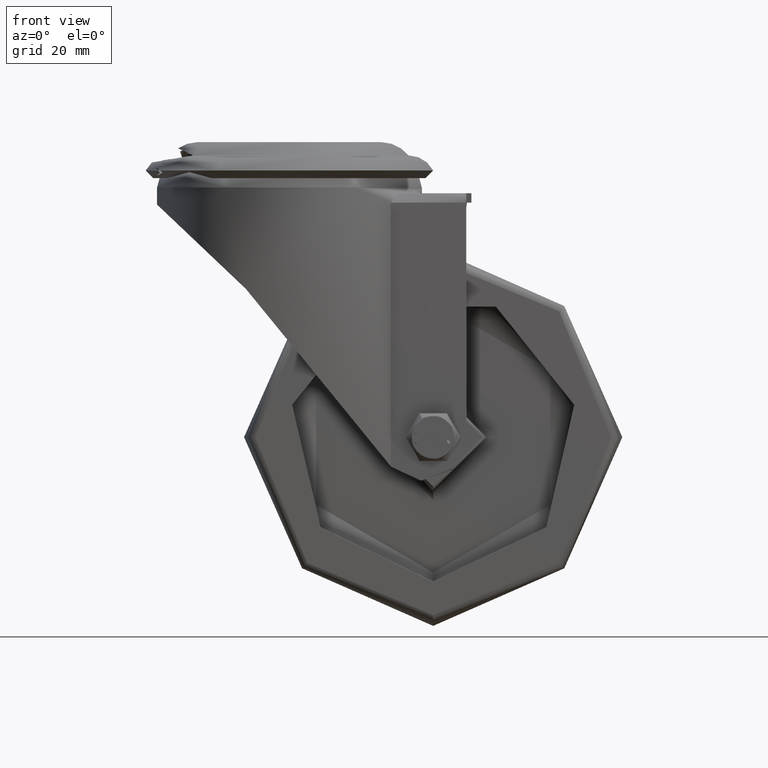
[diagram: clean part render]
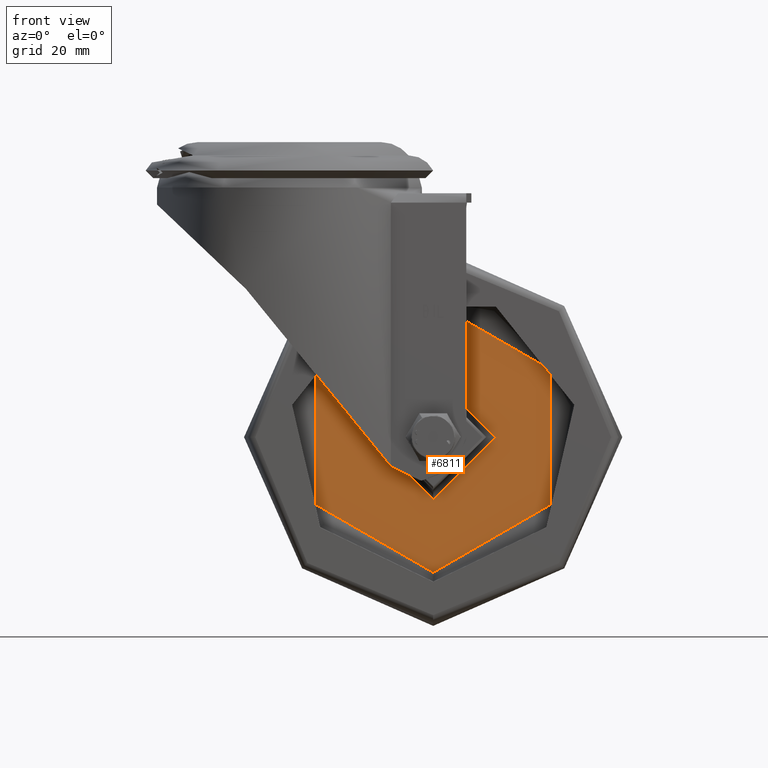
[diagram: same view with one face highlighted and labeled with its STEP entity id]
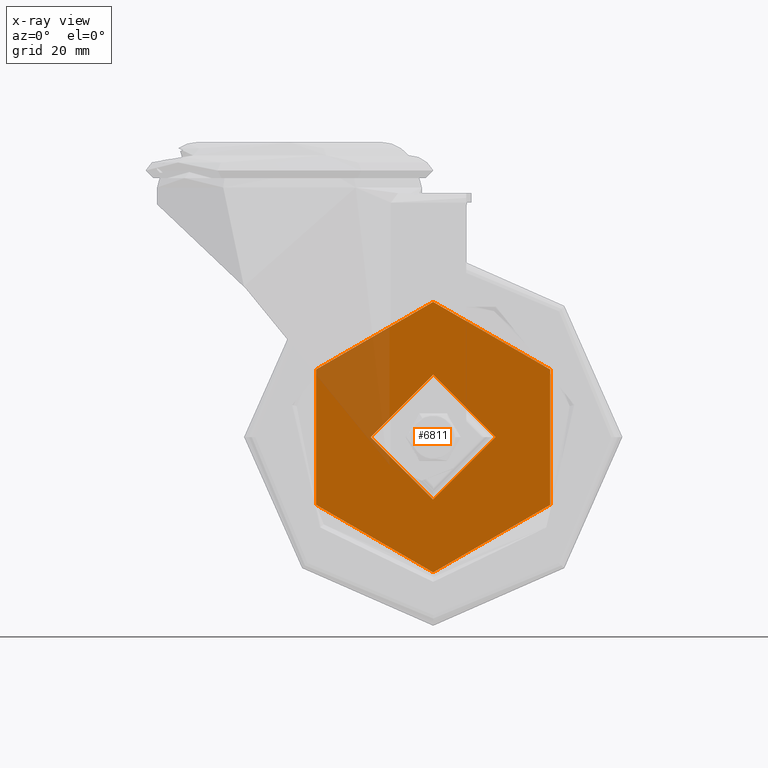
[diagram: x-ray of the same camera — body ghosted, the highlighted face saturated]
A machine part, front view. The second image highlights one B-rep face of the part: STEP entity #6811.
The next image is the same camera in x-ray: the body ghosted, the highlighted face saturated — about 12% of this face is hidden behind the body in this view.
In plain terms, the highlighted planar face has unit normal (0, -1, 0).
Its self-contained STEP definition (entity closure, byte-faithful):
#443=FACE_BOUND('',#1241,.T.);
#516=PLANE('',#7482);
#795=FACE_OUTER_BOUND('',#1240,.T.);
#1240=EDGE_LOOP('',(#5062));
#1241=EDGE_LOOP('',(#5063));
#2627=CIRCLE('',#7466,16.5);
#2631=CIRCLE('',#7471,35.75);
#3040=VERTEX_POINT('',#11724);
#3042=VERTEX_POINT('',#11730);
#3767=EDGE_CURVE('',#3040,#3040,#2627,.T.);
#3771=EDGE_CURVE('',#3042,#3042,#2631,.T.);
#5062=ORIENTED_EDGE('',*,*,#3771,.F.);
#5063=ORIENTED_EDGE('',*,*,#3767,.T.);
#6811=ADVANCED_FACE('',(#795,#443),#516,.T.);
#7466=AXIS2_PLACEMENT_3D('',#11725,#8586,#8587);
#7471=AXIS2_PLACEMENT_3D('',#11732,#8596,#8597);
#7482=AXIS2_PLACEMENT_3D('',#11748,#8620,#8621);
#8586=DIRECTION('center_axis',(0.,1.,0.));
#8587=DIRECTION('ref_axis',(0.,0.,1.));
#8596=DIRECTION('center_axis',(0.,1.,0.));
#8597=DIRECTION('ref_axis',(0.,0.,1.));
#8620=DIRECTION('center_axis',(0.,-1.,0.));
#8621=DIRECTION('ref_axis',(0.,0.,-1.));
#11724=CARTESIAN_POINT('',(2.02066721859313E-15,-2.,-16.5));
#11725=CARTESIAN_POINT('Origin',(0.,-2.,0.));
#11730=CARTESIAN_POINT('',(4.37811230695179E-15,-2.,-35.75));
#11732=CARTESIAN_POINT('Origin',(0.,-2.,0.));
#11748=CARTESIAN_POINT('Origin',(0.,-2.,26.125));